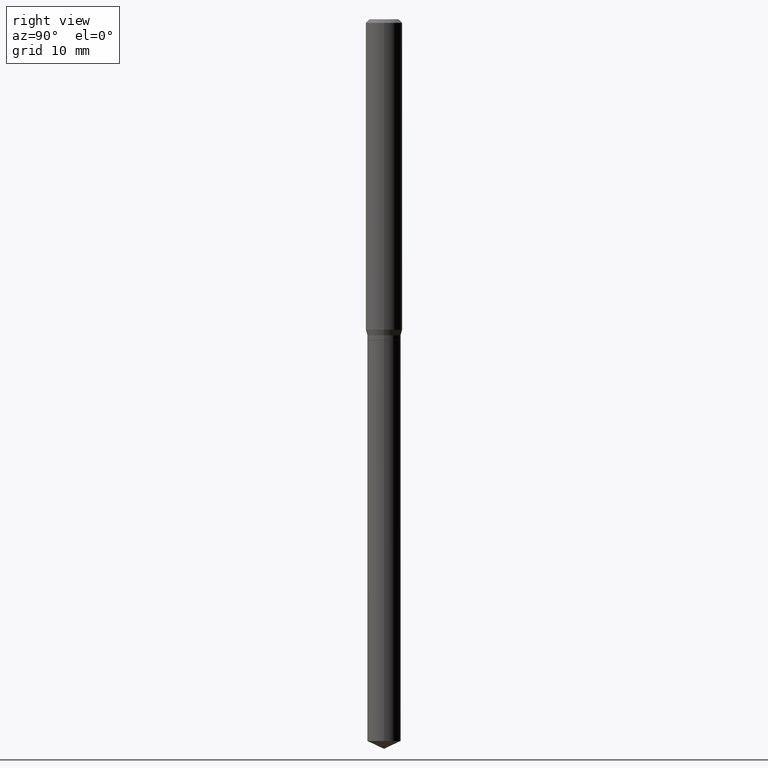
[diagram: clean part render]
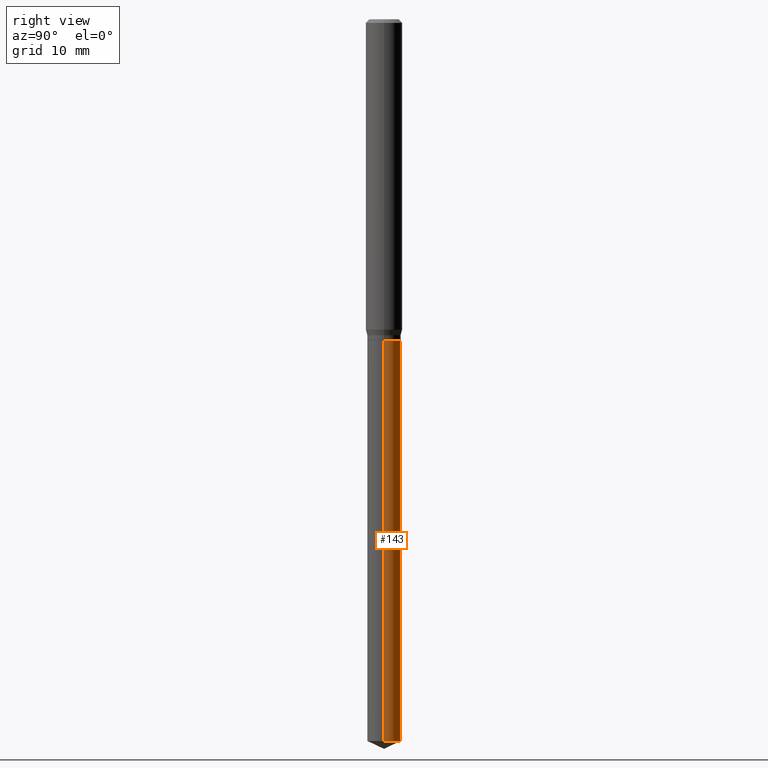
[diagram: same view with one face highlighted and labeled with its STEP entity id]
A machine part, right view. The second image highlights one B-rep face of the part: STEP entity #143.
In plain terms, the highlighted cylindrical surface (edge-blend (fillet) strip) has radius 1.3754 mm, axis along (-0, 0, 1).
Its self-contained STEP definition (entity closure, byte-faithful):
#27 = VERTEX_POINT ( 'NONE', #37 ) ;
#28 = EDGE_CURVE ( 'NONE', #145, #65, #376, .T. ) ;
#29 = CARTESIAN_POINT ( 'NONE',  ( 0.05414999999999999675, -4.007173132590277853E-15, -1.039400000000000324 ) ) ;
#37 = CARTESIAN_POINT ( 'NONE',  ( 0.05414999999999999675, -4.007173132590277853E-15, -1.039400000000000324 ) ) ;
#41 = EDGE_CURVE ( 'NONE', #65, #177, #189, .T. ) ;
#50 = AXIS2_PLACEMENT_3D ( 'NONE', #475, #351, #356 ) ;
#65 = VERTEX_POINT ( 'NONE', #224 ) ;
#66 = LINE ( 'NONE', #29, #300 ) ;
#71 = CARTESIAN_POINT ( 'NONE',  ( 2.541820277148831753E-29, -3.629045703593565980E-15, -1.039400000000000324 ) ) ;
#90 = ORIENTED_EDGE ( 'NONE', *, *, #379, .F. ) ;
#106 = DIRECTION ( 'NONE',  ( -2.445468806185136597E-29, 3.491481338843145583E-15, 1.000000000000000000 ) ) ;
#112 = DIRECTION ( 'NONE',  ( 1.000000000000000000, -6.982962677686271444E-15, 0.000000000000000000 ) ) ;
#143 = ADVANCED_FACE ( 'NONE', ( #481 ), #257, .T. ) ;
#145 = VERTEX_POINT ( 'NONE', #458 ) ;
#151 = CARTESIAN_POINT ( 'NONE',  ( 5.714936957912137219E-29, -8.159415360665465323E-15, -2.336949440310907011 ) ) ;
#153 = DIRECTION ( 'NONE',  ( -2.445468806185136877E-29, 3.491481338843145188E-15, 1.000000000000000000 ) ) ;
#174 = ORIENTED_EDGE ( 'NONE', *, *, #28, .T. ) ;
#175 = ORIENTED_EDGE ( 'NONE', *, *, #487, .F. ) ;
#177 = VERTEX_POINT ( 'NONE', #413 ) ;
#181 = EDGE_LOOP ( 'NONE', ( #174, #430, #175, #90 ) ) ;
#189 = LINE ( 'NONE', #443, #332 ) ;
#191 = DIRECTION ( 'NONE',  ( 1.000000000000000000, -6.982962677686261977E-15, 0.000000000000000000 ) ) ;
#208 = DIRECTION ( 'NONE',  ( -2.445468806185136877E-29, 3.491481338843145188E-15, 1.000000000000000000 ) ) ;
#224 = CARTESIAN_POINT ( 'NONE',  ( -0.05415000000000000369, -7.774656469251370060E-15, -2.336949440310907011 ) ) ;
#257 = CYLINDRICAL_SURFACE ( 'NONE', #482, 0.05414999999999999675 ) ;
#278 = AXIS2_PLACEMENT_3D ( 'NONE', #151, #106, #191 ) ;
#300 = VECTOR ( 'NONE', #208, 39.37007874015748143 ) ;
#332 = VECTOR ( 'NONE', #153, 39.37007874015748143 ) ;
#351 = DIRECTION ( 'NONE',  ( -2.445468806185136597E-29, 3.491481338843145583E-15, 1.000000000000000000 ) ) ;
#356 = DIRECTION ( 'NONE',  ( 1.000000000000000000, -6.982962677686261977E-15, 0.000000000000000000 ) ) ;
#367 = DIRECTION ( 'NONE',  ( -2.445468806185136597E-29, 3.491481338843145583E-15, 1.000000000000000000 ) ) ;
#376 = CIRCLE ( 'NONE', #278, 0.05414999999999999675 ) ;
#379 = EDGE_CURVE ( 'NONE', #145, #27, #66, .T. ) ;
#406 = CIRCLE ( 'NONE', #50, 0.05414999999999999675 ) ;
#413 = CARTESIAN_POINT ( 'NONE',  ( -0.05414999999999999675, -5.509471640715421572E-15, -1.039400000000000324 ) ) ;
#430 = ORIENTED_EDGE ( 'NONE', *, *, #41, .T. ) ;
#443 = CARTESIAN_POINT ( 'NONE',  ( -0.05414999999999999675, -3.244286812179471901E-15, -1.039400000000000324 ) ) ;
#458 = CARTESIAN_POINT ( 'NONE',  ( 0.05415000000000000369, -8.537542789662176406E-15, -2.336949440310907011 ) ) ;
#475 = CARTESIAN_POINT ( 'NONE',  ( 2.541820277148831753E-29, -3.629045703593566769E-15, -1.039400000000000324 ) ) ;
#481 = FACE_OUTER_BOUND ( 'NONE', #181, .T. ) ;
#482 = AXIS2_PLACEMENT_3D ( 'NONE', #71, #367, #112 ) ;
#487 = EDGE_CURVE ( 'NONE', #27, #177, #406, .T. ) ;